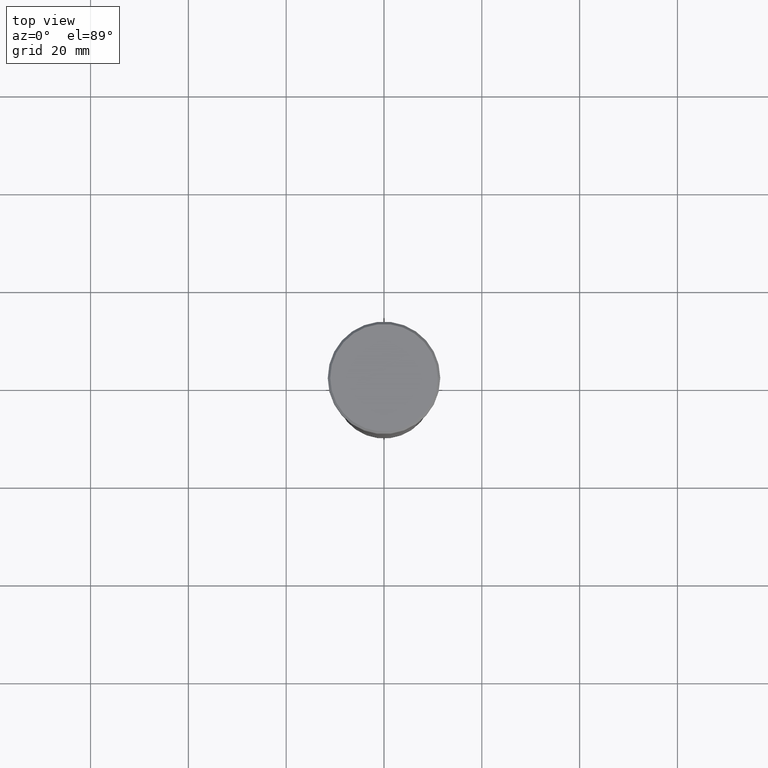
[diagram: clean part render]
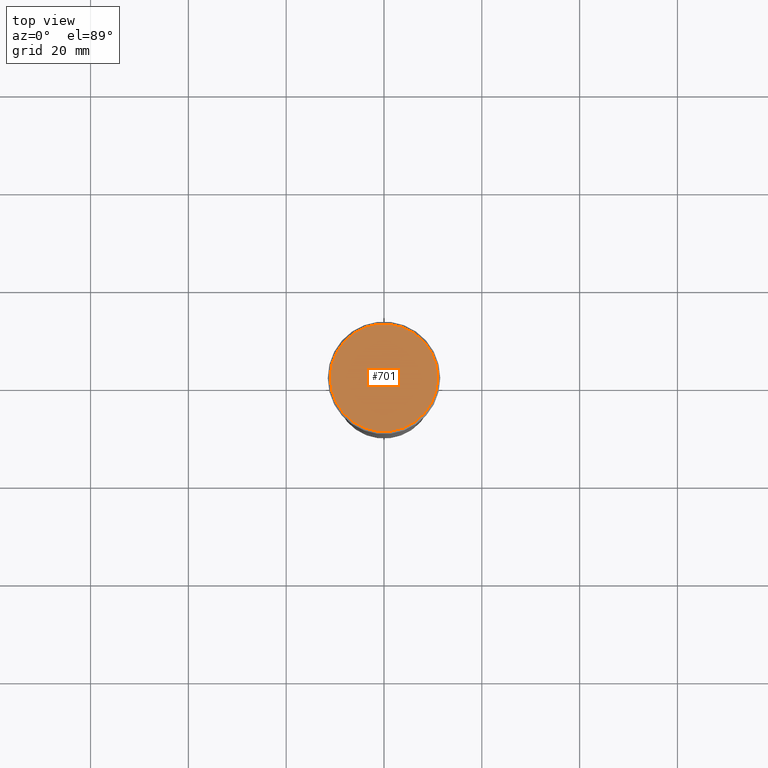
[diagram: same view with one face highlighted and labeled with its STEP entity id]
A machine part, top view. The second image highlights one B-rep face of the part: STEP entity #701.
In plain terms, the highlighted planar face has unit normal (0, -0, 1).
Its self-contained STEP definition (entity closure, byte-faithful):
#74 = ORIENTED_EDGE ( 'NONE', *, *, #1132, .T. ) ;
#92 = VERTEX_POINT ( 'NONE', #906 ) ;
#176 = DIRECTION ( 'NONE',  ( 1.000000000000000000, 0.000000000000000000, 0.000000000000000000 ) ) ;
#217 = DIRECTION ( 'NONE',  ( 0.000000000000000000, -0.000000000000000000, 1.000000000000000000 ) ) ;
#229 = AXIS2_PLACEMENT_3D ( 'NONE', #689, #245, #176 ) ;
#237 = CARTESIAN_POINT ( 'NONE',  ( 0.000000000000000000, 0.000000000000000000, 0.000000000000000000 ) ) ;
#245 = DIRECTION ( 'NONE',  ( -0.000000000000000000, -0.000000000000000000, 1.000000000000000000 ) ) ;
#285 = CIRCLE ( 'NONE', #431, 11.00000000000000355 ) ;
#368 = CARTESIAN_POINT ( 'NONE',  ( -11.00000000000000355, 0.000000000000000000, 0.000000000000000000 ) ) ;
#410 = AXIS2_PLACEMENT_3D ( 'NONE', #941, #217, #1112 ) ;
#431 = AXIS2_PLACEMENT_3D ( 'NONE', #237, #676, #951 ) ;
#446 = EDGE_CURVE ( 'NONE', #92, #667, #602, .T. ) ;
#455 = EDGE_LOOP ( 'NONE', ( #74, #1022 ) ) ;
#602 = CIRCLE ( 'NONE', #229, 11.00000000000000355 ) ;
#667 = VERTEX_POINT ( 'NONE', #368 ) ;
#676 = DIRECTION ( 'NONE',  ( -0.000000000000000000, -0.000000000000000000, 1.000000000000000000 ) ) ;
#689 = CARTESIAN_POINT ( 'NONE',  ( 0.000000000000000000, 0.000000000000000000, 0.000000000000000000 ) ) ;
#701 = ADVANCED_FACE ( 'NONE', ( #753 ), #1010, .T. ) ;
#753 = FACE_OUTER_BOUND ( 'NONE', #455, .T. ) ;
#906 = CARTESIAN_POINT ( 'NONE',  ( 11.00000000000000355, 1.377727649040772389E-15, 0.000000000000000000 ) ) ;
#941 = CARTESIAN_POINT ( 'NONE',  ( 0.000000000000000000, 0.000000000000000000, 0.000000000000000000 ) ) ;
#951 = DIRECTION ( 'NONE',  ( 1.000000000000000000, 0.000000000000000000, 0.000000000000000000 ) ) ;
#1010 = PLANE ( 'NONE',  #410 ) ;
#1022 = ORIENTED_EDGE ( 'NONE', *, *, #446, .T. ) ;
#1112 = DIRECTION ( 'NONE',  ( 1.000000000000000000, 0.000000000000000000, 0.000000000000000000 ) ) ;
#1132 = EDGE_CURVE ( 'NONE', #667, #92, #285, .T. ) ;